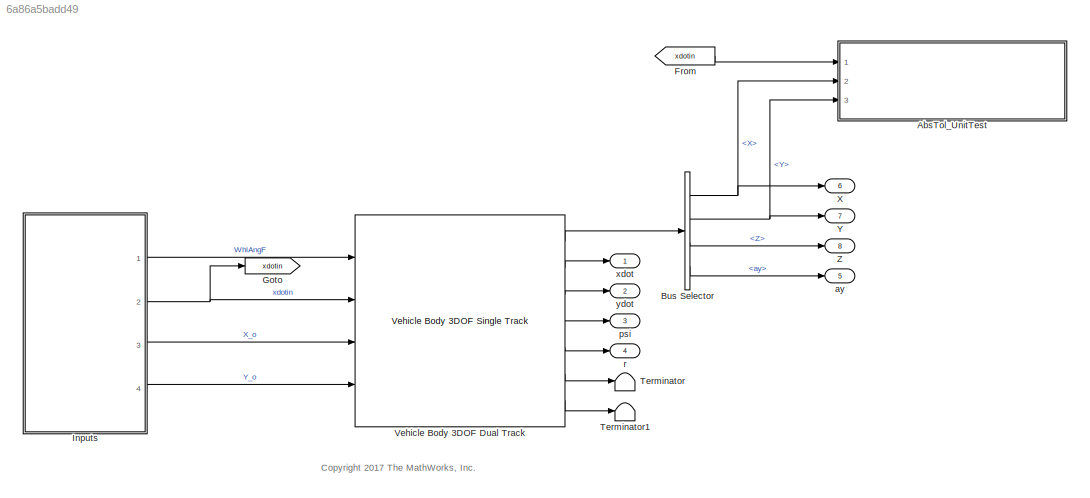
MODEL slx_6a86a5badd49
KIND model
CONFIG AbsTol = auto
CONFIG EnableMultiTasking = off
CONFIG FixedStep = .001
CONFIG MaxStep = auto
CONFIG MinStep = auto
CONFIG RelTol = 3e-3
CONFIG SampleTimeConstraint = Unconstrained
CONFIG Solver = ode4
CONFIG SolverName = ode4
CONFIG StartTime = 0.0
CONFIG StopTime = t_sim
WORKSPACE source: mxarray member
WORKSPACE A_mu = 10
WORKSPACE B_reff = 8.386
WORKSPACE CONVERTER_DATA = [0 0.1 0.2 0.3 0.4 0.5 0.6 0.7 0.8 0.81 0.82 0.83 ... (63 elements, 21x3)]
WORKSPACE Cps = 2
WORKSPACE Cz = 7766.25
WORKSPACE DOWN_TABLE = [0 0 0 0 0 0 5 5 7.5 7.5 15 15 ... (30 elements, 6x5)]
WORKSPACE DOWN_TH_BP = [0 5 40 50 90 100]
WORKSPACE D_reff = 0.25826
WORKSPACE EMAP = [-40 215 245 264 264 267 267 267 267 267 -44 117 ... (110 elements, 10x11)]
WORKSPACE F0z = [6086.4 4324.8]
WORKSPACE F_reff = 0.07394
WORKSPACE F_zmax = 10000
WORKSPACE F_zmin = 100
WORKSPACE F_zo = 4000
WORKSPACE Kz = 48000
WORKSPACE MF: object (value not decoded)
WORKSPACE NCyl = 6
WORKSPACE NE_VEC = [800 1200 1600 2000 2400 2800 3200 3600 4000 4400 4800]
WORKSPACE Pstd = 101325
WORKSPACE Rair = 287
WORKSPACE SUS: object (value not decoded)
WORKSPACE TH_VEC = [0 20 30 40 50 60 70 80 90 100]
WORKSPACE TWAITdn = 1.25
WORKSPACE TWAITup = 0.1
WORKSPACE Tin = [1 2 3 4 5 6 7 8 9 10 2 2 ... (20 elements, 10x2)]
WORKSPACE Tstd = 293.15
WORKSPACE UP_TABLE = [7.5 7.5 15 25 40 40 25 25 35 45 70 80 ... (30 elements, 6x5)]
WORKSPACE UP_TH_BP = [0 25 35 50 90 100]
WORKSPACE VEH: object (value not decoded)
WORKSPACE V_o = 16.7
WORKSPACE V_xlow = 1
WORKSPACE Vd = 0.00346
WORKSPACE WH: object (value not decoded)
WORKSPACE a = 1.4
WORKSPACE alpha_max = 1.5
WORKSPACE alpha_min = -1.5
WORKSPACE b = 1.8
WORKSPACE c_zo = 209651
WORKSPACE epsilon = 0.1
WORKSPACE f_air = [0 0 0 0 0 0 0 0 0 0 0 0 ... (256 elements, 16x16)]
WORKSPACE f_co = [0 0 0 0 0 0 0 0 0 0 0 0 ... (256 elements, 16x16)]
WORKSPACE f_co2 = [0 0 0 0 0 0 0 0 0 0 0 0 ... (256 elements, 16x16)]
WORKSPACE f_eff = [352.135682859 352.135682859 320.724378192 303.655312657 295.930136708 291.240087194 291.240271258 291.240312459 291.240275452 291.240198499 291.240100781 291.240018769 ... (256 elements, 16x16)]
WORKSPACE f_fuel = [0 0 0 0 0 0 0 0 0 0 0 0 ... (256 elements, 16x16)]
WORKSPACE f_hc = [0 0 0 0 0 0 0 0 0 0 0 0 ... (256 elements, 16x16)]
WORKSPACE f_nox = [0 0 0 0 0 0 0 0 0 0 0 0 ... (256 elements, 16x16)]
WORKSPACE f_pm = [0 0 0 0 0 0 0 0 0 0 0 0 ... (256 elements, 16x16)]
WORKSPACE f_susp_axl_bp = [1 2]
WORKSPACE f_susp_dz_bp = [-4 -0.14 -0.13 -0.12 -0.11 -0.1 -0.09 -0.08 -0.07 -0.06 -0.05 -0.04 ... (31 elements, 1x31)]
WORKSPACE f_susp_dzdot_bp = [-4 -0.14 -0.13 -0.12 -0.11 -0.1 -0.09 -0.08 -0.07 -0.06 -0.05 -0.04 ... (31 elements, 1x31)]
WORKSPACE f_susp_fmz = [-213379.591456 -28099.591456 -27619.591456 -27139.591456 -26659.591456 -26179.591456 -25699.591456 -25219.591456 -24739.591456 -24259.591456 -23779.591456 -23299.591456 ... (468968 elements, 31x31x61x2x4)]
WORKSPACE f_susp_geom = [-0.832564012244 0.043269987756 0.045538987756 0.047807987756 0.050076987756 0.052345987756 0.054614987756 0.056883987756 0.059152987756 0.061421987756 0.063690987756 0.065959987756 ... (11346 elements, 31x61x2x3)]
WORKSPACE f_susp_strgdelta_bp = [-0.523598775598 -0.506145483078 -0.488692190558 -0.471238898038 -0.453785605519 -0.436332312999 -0.418879020479 -0.401425727959 -0.383972435439 -0.366519142919 -0.349065850399 -0.331612557879 ... (61 elements, 1x61)]
WORKSPACE f_tbrake = [0 76.8593923996 105.140482948 131.533638111 157.926793274 176.658631717 176.65727296 176.656856686 176.656879077 176.657093756 176.657404516 176.65772406 ... (256 elements, 16x16)]
WORKSPACE f_tbrake_n_bpt = [0 649.519052838 912.419621844 1175.32019085 1438.22075986 1701.12132886 1964.02189787 2226.92246687 2489.82303588 2752.72360489 3015.62417389 3278.5247429 ... (16 elements, 1x16)]
WORKSPACE f_tbrake_t_bpt = [0 34.6410161514 61.0341713143 87.4273264773 113.82048164 140.213636803 166.606791966 192.999947129 219.393102292 245.786257455 272.179412618 298.572567781 ... (16 elements, 1x16)]
WORKSPACE f_texh = [766.752464599 766.752464599 786.17542386 801.679939032 884.591982581 910.574397722 910.571871054 910.570774534 910.570601632 910.570821151 910.571247242 910.571639815 ... (256 elements, 16x16)]
WORKSPACE f_twc_eff_co = [0.17 0.25 0.45 0.99 0.99 0.99 0.99]
WORKSPACE f_twc_eff_hc = [0.21 0.375 0.75 0.98 0.98 0.98 0.98]
WORKSPACE f_twc_eff_lam = [0.909090909 0.944055944 0.979020979 1 1.013986014 1.048951049 1.083916084]
WORKSPACE f_twc_eff_nox = [0.98 0.98 0.98 0.97 0.05 0.02 0]
WORKSPACE h = 0.5
WORKSPACE k_z = 50
WORKSPACE kappa_max = 1.5
WORKSPACE kappa_min = -1.5
WORKSPACE lam_Cx = 1
WORKSPACE lam_Cy = 1
WORKSPACE lam_Cz = 1
WORKSPACE lam_Ex = 1
WORKSPACE lam_Ey = 1
WORKSPACE lam_F_zo = 1
WORKSPACE lam_Hx = 1
WORKSPACE lam_Hy = 1
WORKSPACE lam_Kxkappa = 1
WORKSPACE lam_Kyalpha = 1
WORKSPACE lam_Kygamma = 1
WORKSPACE lam_Kzgamma = 1
WORKSPACE lam_Mr = 1
WORKSPACE lam_Mx = 1
WORKSPACE lam_My = 1
WORKSPACE lam_S = 1
WORKSPACE lam_VMx = 1
WORKSPACE lam_Vx = 1
WORKSPACE lam_Vy = 1
WORKSPACE lam_Vykappa = 1
WORKSPACE lam_muV = 0
WORKSPACE lam_mux = 1
WORKSPACE lam_muy = 1
WORKSPACE lam_t = 1
WORKSPACE lam_xalpha = 1
WORKSPACE lam_ykappa = 1
WORKSPACE numWheel = 4
WORKSPACE p_Cx1 = 1.579
WORKSPACE p_Cy1 = 1.3332
WORKSPACE p_Dx1 = 1.0422
WORKSPACE p_Dx2 = -0.08285
WORKSPACE p_Dx3 = 0
WORKSPACE p_Dy1 = 0.8784
WORKSPACE p_Dy2 = -0.06445
WORKSPACE p_Dy3 = 0
WORKSPACE p_Ex1 = 0.11185
WORKSPACE p_Ex2 = 0.3127
WORKSPACE p_Ex3 = 0
WORKSPACE p_Ex4 = 0.001603
WORKSPACE p_Ey1 = -0.8227
WORKSPACE p_Ey2 = -0.6062
WORKSPACE p_Ey3 = 0.09825
WORKSPACE p_Ey4 = -6.546
WORKSPACE p_Ey5 = 0
WORKSPACE p_Fz1 = 0.7098
WORKSPACE p_Hx1 = 0.00021585
WORKSPACE p_Hx2 = 0.0011538
WORKSPACE p_Hy1 = -0.0018043
WORKSPACE p_Hy2 = 0.003518
WORKSPACE p_Kx1 = 21.69
WORKSPACE p_Kx2 = 13.774
WORKSPACE p_Kx3 = -0.4119
WORKSPACE p_Ky1 = -15.314
WORKSPACE p_Ky2 = 1.7044
WORKSPACE p_Ky3 = 0.36986
WORKSPACE p_Ky4 = 1.9896
WORKSPACE p_Ky5 = 0
WORKSPACE p_Ky6 = -0.9004
WORKSPACE p_Ky7 = -0.2328
WORKSPACE p_Vx1 = 1.5973e-05
WORKSPACE p_Vx2 = 0.0001043
WORKSPACE p_Vy1 = -0.006642
WORKSPACE p_Vy2 = 0.03597
WORKSPACE p_Vy3 = -0.1621
WORKSPACE p_Vy4 = -0.4908
WORKSPACE p_pmx1 = 0
WORKSPACE p_px1 = -0.3489
WORKSPACE p_px2 = 0.382
WORKSPACE p_px3 = -0.09634
WORKSPACE p_px4 = 0.06447
WORKSPACE p_py1 = -0.6249
WORKSPACE p_py2 = -0.06535
WORKSPACE p_py3 = -0.1668
WORKSPACE p_py4 = 0.2834
WORKSPACE p_py5 = 0
WORKSPACE path: object (value not decoded)
WORKSPACE pio = 220000
WORKSPACE q_Fcx = 0
WORKSPACE q_Fz2 = 15.4
WORKSPACE q_Fzy = 0
WORKSPACE q_reo = 0.9974
WORKSPACE q_sx1 = -0.007764
WORKSPACE q_sx10 = 0.2824
WORKSPACE q_sx11 = 5.349
WORKSPACE q_sx12 = 0
WORKSPACE q_sx13 = 0
WORKSPACE q_sx14 = 0
WORKSPACE q_sx2 = 1.1915
WORKSPACE q_sx3 = 0.013948
WORKSPACE q_sx4 = 4.912
WORKSPACE q_sx5 = 1.02
WORKSPACE q_sx6 = 22.83
WORKSPACE q_sx7 = 0.7104
WORKSPACE q_sx8 = -0.023393
WORKSPACE q_sx9 = 0.6581
WORKSPACE q_sy1 = 0.00702
WORKSPACE q_sy2 = 0
WORKSPACE q_sy3 = 0.001515
WORKSPACE q_sy4 = 8.514e-05
WORKSPACE q_sy5 = 0
WORKSPACE q_sy6 = 0
WORKSPACE q_sy7 = 0.9008
WORKSPACE q_sy8 = -0.4089
WORKSPACE q_v1 = 0.0007742
WORKSPACE q_v2 = 0.04667
WORKSPACE r_Bx1 = 12.531
WORKSPACE r_Bx2 = 9.532
WORKSPACE r_Bx3 = 0
WORKSPACE r_By1 = 10.615
WORKSPACE r_By2 = 7.705
WORKSPACE r_By3 = 3.433e-06
WORKSPACE r_By4 = 0
WORKSPACE r_Cx1 = 1.019
WORKSPACE r_Cy1 = 1.0585
WORKSPACE r_Ex1 = -0.4487
WORKSPACE r_Ex2 = -0.4726
WORKSPACE r_Ey1 = 0.3132
WORKSPACE r_Ey2 = 7.63e-06
WORKSPACE r_Hx1 = 0.0002374
WORKSPACE r_Hy1 = 0.011646
WORKSPACE r_Hy2 = 7.63e-06
WORKSPACE r_Vy1 = 0.05654
WORKSPACE r_Vy2 = 7.63e-06
WORKSPACE r_Vy3 = 0
WORKSPACE r_Vy4 = 99.9
WORKSPACE r_Vy5 = 2
WORKSPACE r_Vy6 = 15.814
WORKSPACE r_o = 0.3135
WORKSPACE reqTmaxT = [nan 0.285774810084 0.647179872268 nan nan nan nan nan nan nan nan nan ... (168 elements, 21x8)]
WORKSPACE vehSpd = [0 2.77777777778 5.55555555556 8.33333333333 11.1111111111 13.8888888889 16.6666666667 19.4444444444 22.2222222222 25 27.7777777778 30.5555555556 ... (21 elements, 1x21)]
WORKSPACE vehWidth = 2
WORKSPACE w = 1
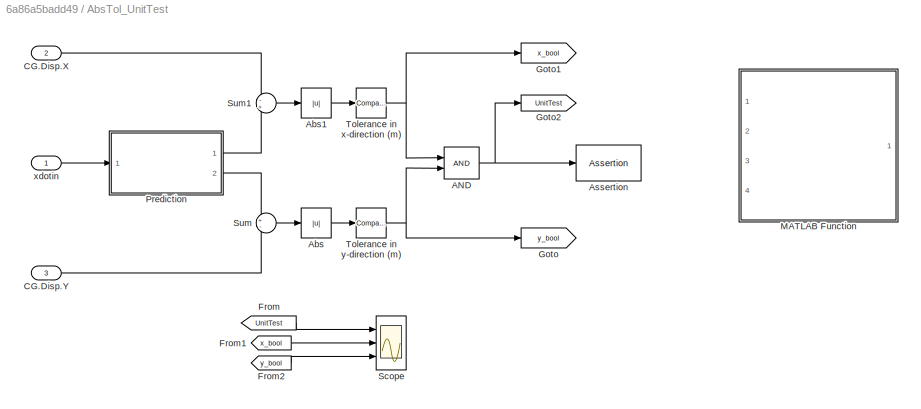
BLOCK [SubSystem] AbsTol_UnitTest
  Ports = [3]
  RequestExecContextInheritance = off
BLOCK [Logic] AbsTol_UnitTest/AND
  AllPortsSameDT = off
  IconShape = distinctive
  OutDataTypeStr = boolean
  Ports = [2, 1]
BLOCK [Abs] AbsTol_UnitTest/Abs
  SaturateOnIntegerOverflow = off
BLOCK [Abs] AbsTol_UnitTest/Abs1
  SaturateOnIntegerOverflow = off
BLOCK [Assertion] AbsTol_UnitTest/Assertion
  StopWhenAssertionFail = off
BLOCK [Inport] AbsTol_UnitTest/CG.Disp.X
  Port = 2
BLOCK [Inport] AbsTol_UnitTest/CG.Disp.Y
  Port = 3
BLOCK [From] AbsTol_UnitTest/From
  GotoTag = UnitTest
BLOCK [From] AbsTol_UnitTest/From1
  GotoTag = x_bool
BLOCK [From] AbsTol_UnitTest/From2
  GotoTag = y_bool
BLOCK [Goto] AbsTol_UnitTest/Goto
  GotoTag = y_bool
BLOCK [Goto] AbsTol_UnitTest/Goto1
  GotoTag = x_bool
BLOCK [Goto] AbsTol_UnitTest/Goto2
  GotoTag = UnitTest
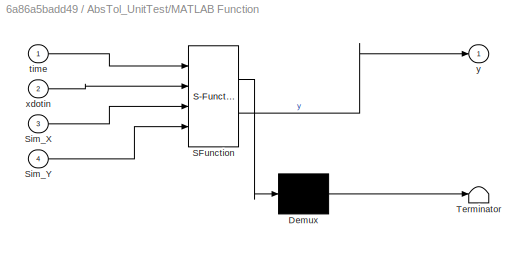
BLOCK [SubSystem] AbsTol_UnitTest/MATLAB Function
  Commented = on
  ErrorFcn = Stateflow.Translate.translate
  PermitHierarchicalResolution = ExplicitOnly
  Ports = [4, 1]
  RequestExecContextInheritance = off
  SFBlockType = MATLAB Function
  TreatAsAtomicUnit = on
BLOCK [Demux] AbsTol_UnitTest/MATLAB Function/ Demux 
  Outputs = 1
  Ports = [1, 1]
BLOCK [S-Function] AbsTol_UnitTest/MATLAB Function/ SFunction 
  EnableBusSupport = on
  FunctionName = sf_sfun
  PortCounts = [4 2]
  Ports = [4, 2]
  SFcnIsStateOwnerBlock = off
  SFunctionDeploymentMode = off
  Tag = Stateflow S-Function 2
BLOCK [Terminator] AbsTol_UnitTest/MATLAB Function/ Terminator 
BLOCK [Inport] AbsTol_UnitTest/MATLAB Function/Sim_X
  Port = 3
BLOCK [Inport] AbsTol_UnitTest/MATLAB Function/Sim_Y
  Port = 4
BLOCK [Inport] AbsTol_UnitTest/MATLAB Function/time
BLOCK [Inport] AbsTol_UnitTest/MATLAB Function/xdotin
  Port = 2
BLOCK [Outport] AbsTol_UnitTest/MATLAB Function/y
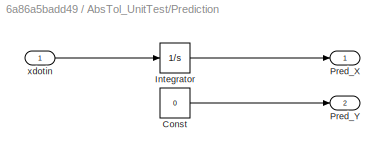
BLOCK [SubSystem] AbsTol_UnitTest/Prediction
  Ports = [1, 2]
  RequestExecContextInheritance = off
BLOCK [Constant] AbsTol_UnitTest/Prediction/Const
  Value = 0
BLOCK [Integrator] AbsTol_UnitTest/Prediction/Integrator
  Ports = [1, 1]
BLOCK [Outport] AbsTol_UnitTest/Prediction/Pred_X
BLOCK [Outport] AbsTol_UnitTest/Prediction/Pred_Y
  Port = 2
BLOCK [Inport] AbsTol_UnitTest/Prediction/xdotin
BLOCK [Scope] AbsTol_UnitTest/Scope
  Floating = off
  NumInputPorts = 3
  Ports = [3]
  ScopeSpecificationString = Simulink.scopes.TimeScopeBlockCfg('CurrentConfiguration', extmgr.ConfigurationSet(extmgr.Configuration('Core','General UI',true),extmgr.Configuration('Core','Source UI',true),extmgr.Configuration('Sources','WiredSimulink',true),extmgr.Configuration('Visuals','Time Domain',true,'SerializedDisplays',{struct('MinYLimReal','0.9','MaxYLimReal','1.1','YLabelReal','','MinYLimMag','0.9','MaxYLimMag','1.1'...<+2754ch>
BLOCK [Sum] AbsTol_UnitTest/Sum
  Inputs = +-
  Ports = [2, 1]
BLOCK [Sum] AbsTol_UnitTest/Sum1
  Inputs = -+
  Ports = [2, 1]
BLOCK [Reference] AbsTol_UnitTest/Tolerance in x-direction (m)  REF=simulink/Logic and Bit
Operations/Compare
To Constant
  Ports = [1, 1]
  SourceBlock = simulink/Logic and Bit\nOperations/Compare\nTo Constant
  SourceProductBaseCode = SL
  SourceType = Compare To Constant
BLOCK [Reference] AbsTol_UnitTest/Tolerance in y-direction (m)  REF=simulink/Logic and Bit
Operations/Compare
To Constant
  Ports = [1, 1]
  SourceBlock = simulink/Logic and Bit\nOperations/Compare\nTo Constant
  SourceProductBaseCode = SL
  SourceType = Compare To Constant
BLOCK [Inport] AbsTol_UnitTest/xdotin
BLOCK [BusSelector] Bus Selector
  OutputSignals = InertFrm.Cg.Disp.X,InertFrm.Cg.Disp.Y,InertFrm.Cg.Disp.Z,BdyFrm.Cg.Acc.ay
  Ports = [1, 4]
BLOCK [From] From
  GotoTag = xdotin
BLOCK [Goto] Goto
  GotoTag = xdotin
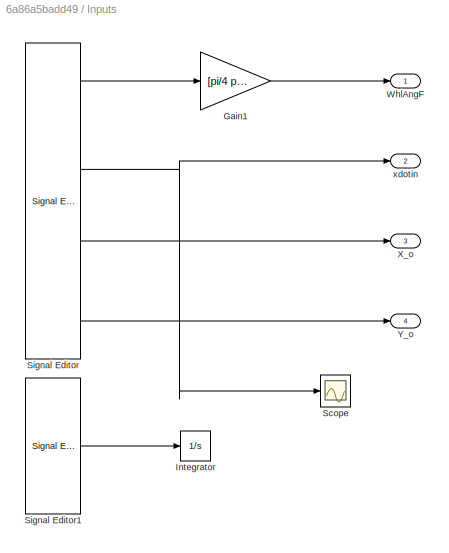
BLOCK [SubSystem] Inputs
  Ports = [0, 4]
  RequestExecContextInheritance = off
BLOCK [Gain] Inputs/Gain1
  Gain = [pi/4 pi/4]
BLOCK [Integrator] Inputs/Integrator
  Commented = on
  Ports = [1, 1]
BLOCK [Scope] Inputs/Scope
  Floating = off
  NumInputPorts = 1
  Ports = [1]
  ScopeSpecificationString = Simulink.scopes.TimeScopeBlockCfg('CurrentConfiguration', extmgr.ConfigurationSet(extmgr.Configuration('Core','General UI',true),extmgr.Configuration('Core','Source UI',true),extmgr.Configuration('Sources','WiredSimulink',true,'DataLoggingVariableName','ScopeData1'),extmgr.Configuration('Visuals','Time Domain',true,'SerializedDisplays',{struct('MinYLimReal','-1.875','MaxYLimReal','16.875','YLabelR...<+1426ch>
BLOCK [Reference] Inputs/Signal Editor  REF=SignalEditorBlockLib/Signal Editor
  Ports = [0, 4]
  SourceBlock = SignalEditorBlockLib/Signal Editor
  SourceProductBaseCode = SL
  SourceType = SignalEditor
  UserDataPersistent = on
BLOCK [Reference] Inputs/Signal Editor1  REF=SignalEditorBlockLib/Signal Editor
  Commented = on
  Ports = [0, 1]
  SourceBlock = SignalEditorBlockLib/Signal Editor
  SourceProductBaseCode = SL
  SourceType = SignalEditor
  UserDataPersistent = on
BLOCK [Outport] Inputs/WhlAngF
BLOCK [Outport] Inputs/X_o
  Port = 3
BLOCK [Outport] Inputs/Y_o
  Port = 4
BLOCK [Outport] Inputs/xdotin
  Port = 2
BLOCK [Terminator] Terminator
BLOCK [Terminator] Terminator1
BLOCK [Reference] Vehicle Body 3DOF Dual Track  REF=autolibshared/Vehicle Body 3DOF Single Track
  Ports = [4, 7]
  SourceBlock = autolibshared/Vehicle Body 3DOF Single Track
  SourceProductBaseCode = PW,MT,VE,VP
  SourceType = Vehicle Body 3DOF Lateral
BLOCK [Outport] X
  Port = 6
  VectorParamsAs1DForOutWhenUnconnected = off
BLOCK [Outport] Y
  Port = 7
  VectorParamsAs1DForOutWhenUnconnected = off
BLOCK [Outport] Z
  Port = 8
  VectorParamsAs1DForOutWhenUnconnected = off
BLOCK [Outport] ay
  Port = 5
  VectorParamsAs1DForOutWhenUnconnected = off
BLOCK [Outport] psi
  Port = 3
  VectorParamsAs1DForOutWhenUnconnected = off
BLOCK [Outport] r
  Port = 4
  VectorParamsAs1DForOutWhenUnconnected = off
BLOCK [Outport] xdot
  VectorParamsAs1DForOutWhenUnconnected = off
BLOCK [Outport] ydot
  Port = 2
  VectorParamsAs1DForOutWhenUnconnected = off
ANNOTATION (root): <copyright redacted>
NET AbsTol_UnitTest/AND:1 -> AbsTol_UnitTest/Assertion:1, AbsTol_UnitTest/Goto2:1
LINE AbsTol_UnitTest/Abs1:1 -> AbsTol_UnitTest/Tolerance in x-direction (m):1
LINE AbsTol_UnitTest/Abs:1 -> AbsTol_UnitTest/Tolerance in y-direction (m):1
LINE AbsTol_UnitTest/CG.Disp.X:1 -> AbsTol_UnitTest/Sum1:1
LINE AbsTol_UnitTest/CG.Disp.Y:1 -> AbsTol_UnitTest/Sum:2
LINE AbsTol_UnitTest/From1:1 -> AbsTol_UnitTest/Scope:2
LINE AbsTol_UnitTest/From2:1 -> AbsTol_UnitTest/Scope:3
LINE AbsTol_UnitTest/From:1 -> AbsTol_UnitTest/Scope:1
LINE AbsTol_UnitTest/Prediction/Const:1 -> AbsTol_UnitTest/Prediction/Pred_Y:1
LINE AbsTol_UnitTest/Prediction/Integrator:1 -> AbsTol_UnitTest/Prediction/Pred_X:1
LINE AbsTol_UnitTest/Prediction/xdotin:1 -> AbsTol_UnitTest/Prediction/Integrator:1
LINE AbsTol_UnitTest/Prediction:1 -> AbsTol_UnitTest/Sum1:2
LINE AbsTol_UnitTest/Prediction:2 -> AbsTol_UnitTest/Sum:1
LINE AbsTol_UnitTest/Sum1:1 -> AbsTol_UnitTest/Abs1:1
LINE AbsTol_UnitTest/Sum:1 -> AbsTol_UnitTest/Abs:1
NET AbsTol_UnitTest/Tolerance in x-direction (m):1 -> AbsTol_UnitTest/AND:1, AbsTol_UnitTest/Goto1:1
NET AbsTol_UnitTest/Tolerance in y-direction (m):1 -> AbsTol_UnitTest/AND:2, AbsTol_UnitTest/Goto:1
LINE AbsTol_UnitTest/xdotin:1 -> AbsTol_UnitTest/Prediction:1
NET Bus Selector:1 -> AbsTol_UnitTest:2, X:1
NET Bus Selector:2 -> AbsTol_UnitTest:3, Y:1
LINE Bus Selector:3 -> Z:1
LINE Bus Selector:4 -> ay:1
LINE From:1 -> AbsTol_UnitTest:1
LINE Inputs/Gain1:1 -> Inputs/WhlAngF:1
LINE Inputs/Signal Editor1:1 -> Inputs/Integrator:1
LINE Inputs/Signal Editor:1 -> Inputs/Gain1:1
NET Inputs/Signal Editor:2 -> Inputs/Scope:1, Inputs/xdotin:1
LINE Inputs/Signal Editor:3 -> Inputs/X_o:1
LINE Inputs/Signal Editor:4 -> Inputs/Y_o:1
LINE Inputs:1 -> Vehicle Body 3DOF Dual Track:1
NET Inputs:2 -> Goto:1, Vehicle Body 3DOF Dual Track:2
LINE Inputs:3 -> Vehicle Body 3DOF Dual Track:3
LINE Inputs:4 -> Vehicle Body 3DOF Dual Track:4
LINE Vehicle Body 3DOF Dual Track:1 -> Bus Selector:1
LINE Vehicle Body 3DOF Dual Track:2 -> xdot:1
LINE Vehicle Body 3DOF Dual Track:3 -> ydot:1
LINE Vehicle Body 3DOF Dual Track:4 -> psi:1
LINE Vehicle Body 3DOF Dual Track:5 -> r:1
LINE Vehicle Body 3DOF Dual Track:6 -> Terminator:1
LINE Vehicle Body 3DOF Dual Track:7 -> Terminator1:1
note: NET lines group one-source signal fan-out (src -> all destinations, sorted); 1:1 wires keep LINE
CHART AbsTol_UnitTest/MATLAB Function states=1 transitions=1
  STATE_LABEL 'eML_blk_kernel()'
  STATE_LABEL 'SCRIPT:\nfunction y = LinAccUnitTest(time,xdotin,Sim_X,Sim_Y)\n% Linear acceleration/braking test\n%scale:\n% t_sim = 60, \n\n\n% Declare Variables\nPred_X = time.*xdotin;\nPred_Y = 0;\n\n% Calculate Error\nError_X = (Pred_X - Sim_X)/Pred_X;\nError_Y = (Pred_Y - Sim_Y)/Pred_Y;\n\n% Pass/Fail Unit Test\nif Error_X < 0.05 && Error_Y < 0.01\n    y = 1;\nelse\n    y = 0;\nend\n'
CHART  states=0 transitions=0
